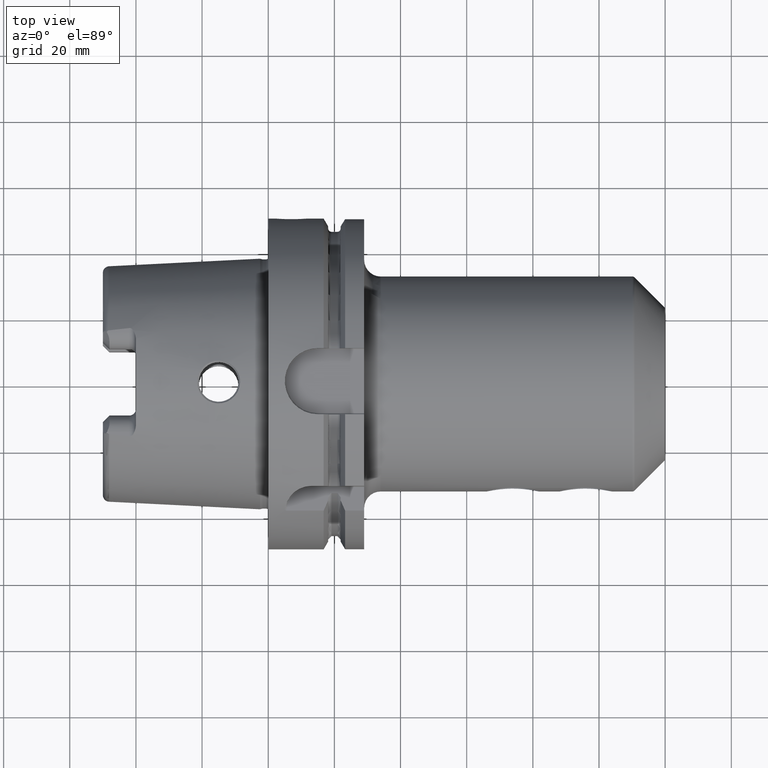
[diagram: clean part render]
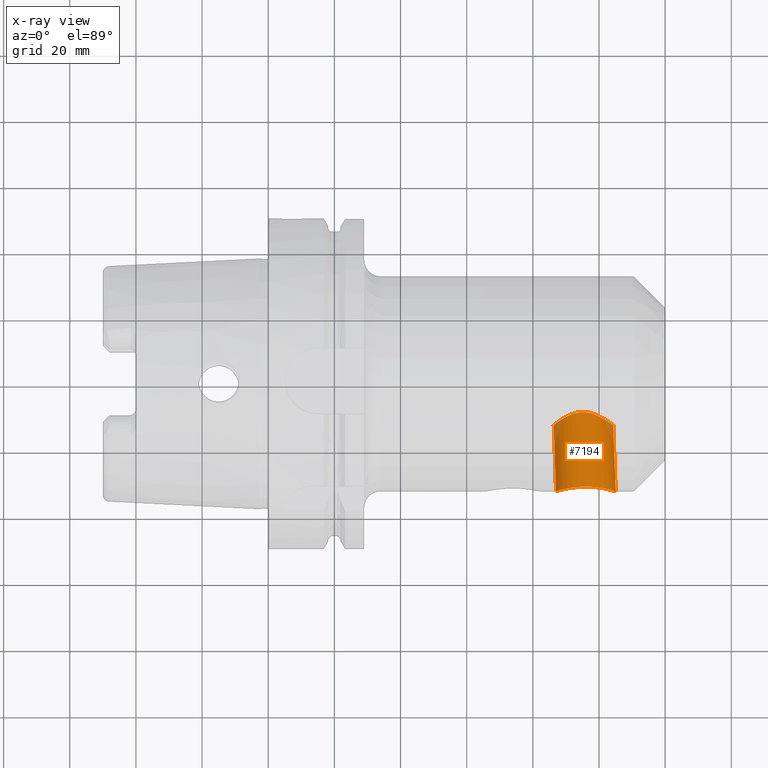
[diagram: x-ray — body ghosted, one internal face saturated and labeled with its STEP entity id]
A machine part, top view, then the same camera in x-ray: the body is ghosted and one INTERNAL B-rep face — a face not visible from any outside direction — is saturated and labeled: STEP entity #7194.
In plain terms, the highlighted cylindrical surface (edge-blend (fillet) strip) has radius 9 mm, axis along (0.0349, -0.9994, 0).
Its self-contained STEP definition (entity closure, byte-faithful):
#7017=CARTESIAN_POINT('',(1.050054858987E2,-3.25E1,0.E0));
#7048=CARTESIAN_POINT('',(8.699451410131E1,-3.25E1,0.E0));
#7050=CARTESIAN_POINT('',(8.629609871148E1,-1.25E1,0.E0));
#7083=CARTESIAN_POINT('',(1.043070705089E2,-1.25E1,0.E0));
#7085=CARTESIAN_POINT('',(8.699451410131E1,-3.25E1,0.E0));
#7086=CARTESIAN_POINT('',(8.699451410131E1,-3.25E1,3.213229832624E-1));
#7087=CARTESIAN_POINT('',(8.702862196609E1,-3.249044223715E1,
9.651940161732E-1));
#7088=CARTESIAN_POINT('',(8.718304087479E1,-3.244763761312E1,1.924325472713E0));
#7089=CARTESIAN_POINT('',(8.743945394043E1,-3.237810363315E1,2.862963684577E0));
#7090=CARTESIAN_POINT('',(8.779695827010E1,-3.228440721605E1,3.772872452183E0));
#7091=CARTESIAN_POINT('',(8.825149269177E1,-3.217075843611E1,4.640750198488E0));
#7092=CARTESIAN_POINT('',(8.880506954534E1,-3.204073360650E1,5.464208593886E0));
#7093=CARTESIAN_POINT('',(8.944712628254E1,-3.190163647135E1,6.222106073317E0));
#7094=CARTESIAN_POINT('',(9.016491850705E1,-3.176119670223E1,6.900491022713E0));
#7095=CARTESIAN_POINT('',(9.094601401850E1,-3.162652840078E1,7.491182316945E0));
#7096=CARTESIAN_POINT('',(9.178857361395E1,-3.150279679318E1,7.993518566182E0));
#7097=CARTESIAN_POINT('',(9.267089841067E1,-3.139736746239E1,8.396391756207E0));
#7098=CARTESIAN_POINT('',(9.358992775542E1,-3.131399195365E1,8.700947441162E0));
#7099=CARTESIAN_POINT('',(9.452758825427E1,-3.125683071922E1,8.903268607528E0));
#7100=CARTESIAN_POINT('',(9.548449074721E1,-3.122763614086E1,9.004723720654E0));
#7101=CARTESIAN_POINT('',(9.644265141278E1,-3.122786976593E1,9.003916778870E0));
#7102=CARTESIAN_POINT('',(9.740378529454E1,-3.125763412297E1,8.900461730014E0));
#7103=CARTESIAN_POINT('',(9.834938777543E1,-3.131562381770E1,8.695110977053E0));
#7104=CARTESIAN_POINT('',(9.927921408087E1,-3.140016017236E1,8.386020230087E0));
#7105=CARTESIAN_POINT('',(1.001739054281E2,-3.150700539455E1,7.977054074937E0));
#7106=CARTESIAN_POINT('',(1.010291151728E2,-3.163222874055E1,7.467266638853E0));
#7107=CARTESIAN_POINT('',(1.018206216929E2,-3.176796337607E1,6.869488724044E0));
#7108=CARTESIAN_POINT('',(1.025466353411E2,-3.190889637358E1,6.184966675290E0));
#7109=CARTESIAN_POINT('',(1.031939013594E2,-3.204767553445E1,5.423449949087E0));
#7110=CARTESIAN_POINT('',(1.037502095206E2,-3.217668450711E1,4.599395246536E0));
#7111=CARTESIAN_POINT('',(1.042054490691E2,-3.228882861202E1,3.734488486385E0));
#7112=CARTESIAN_POINT('',(1.045626517394E2,-3.238090103001E1,2.830314506117E0));
#7113=CARTESIAN_POINT('',(1.048180243904E2,-3.244891654876E1,1.900909279425E0));
#7114=CARTESIAN_POINT('',(1.049716260217E2,-3.249069438089E1,
9.527625136571E-1));
#7115=CARTESIAN_POINT('',(1.050054858987E2,-3.25E1,3.170761913594E-1));
#7116=CARTESIAN_POINT('',(1.050054858987E2,-3.25E1,0.E0));
#7118=DIRECTION('',(-3.489949670250E-2,9.993908270191E-1,0.E0));
#7119=VECTOR('',#7118,2.001219088598E1);
#7120=CARTESIAN_POINT('',(1.050054858987E2,-3.25E1,0.E0));
#7121=LINE('',#7120,#7119);
#7122=CARTESIAN_POINT('',(1.043070705089E2,-1.25E1,0.E0));
#7123=CARTESIAN_POINT('',(1.043070705089E2,-1.25E1,2.818191463595E-1));
#7124=CARTESIAN_POINT('',(1.042799010793E2,-1.248090825391E1,
8.483616936455E-1));
#7125=CARTESIAN_POINT('',(1.041554858658E2,-1.239385378126E1,1.698700964298E0));
#7126=CARTESIAN_POINT('',(1.039462933014E2,-1.224873523084E1,2.543014547395E0));
#7127=CARTESIAN_POINT('',(1.036447137978E2,-1.204242553607E1,3.388857288242E0));
#7128=CARTESIAN_POINT('',(1.032471996422E2,-1.177597193510E1,4.223152308527E0));
#7129=CARTESIAN_POINT('',(1.027438645108E2,-1.144821896902E1,5.044646820218E0));
#7130=CARTESIAN_POINT('',(1.021327484407E2,-1.106604316175E1,5.834856467933E0));
#7131=CARTESIAN_POINT('',(1.014131270330E2,-1.064092075190E1,6.576447009617E0));
#7132=CARTESIAN_POINT('',(1.006087544258E2,-1.020169187640E1,7.236380143390E0));
#7133=CARTESIAN_POINT('',(9.973666077817E1,-9.774930194169E0,7.799978240192E0));
#7134=CARTESIAN_POINT('',(9.885232168356E1,-9.402608884938E0,8.241730153737E0));
#7135=CARTESIAN_POINT('',(9.798683191315E1,-9.104265529675E0,8.567891705911E0));
#7136=CARTESIAN_POINT('',(9.715109164875E1,-8.884768278008E0,8.793859666509E0));
#7137=CARTESIAN_POINT('',(9.634461518163E1,-8.741947795446E0,8.935044622192E0));
#7138=CARTESIAN_POINT('',(9.555774783097E1,-8.671914309818E0,9.002674997714E0));
#7139=CARTESIAN_POINT('',(9.478741174555E1,-8.671552321478E0,9.003021843146E0));
#7140=CARTESIAN_POINT('',(9.400928039452E1,-8.740358866808E0,8.936587243039E0));
#7141=CARTESIAN_POINT('',(9.322178970218E1,-8.880173984428E0,8.798438108948E0));
#7142=CARTESIAN_POINT('',(9.241603323966E1,-9.093296080801E0,8.579367601765E0));
#7143=CARTESIAN_POINT('',(9.158754628098E1,-9.382258527943E0,8.264529132930E0));
#7144=CARTESIAN_POINT('',(9.074586388971E1,-9.742621951397E0,7.839704244678E0));
#7145=CARTESIAN_POINT('',(8.991285338072E1,-1.015951714903E1,7.294827575619E0));
#7146=CARTESIAN_POINT('',(8.913892609071E1,-1.059441320793E1,6.650617029200E0));
#7147=CARTESIAN_POINT('',(8.844075235541E1,-1.102126530428E1,5.918848070124E0));
#7148=CARTESIAN_POINT('',(8.784283968019E1,-1.141009251058E1,5.130571775670E0));
#7149=CARTESIAN_POINT('',(8.734753645078E1,-1.174672923928E1,4.304525572862E0));
#7150=CARTESIAN_POINT('',(8.695446306441E1,-1.202250298996E1,3.460089274569E0));
#7151=CARTESIAN_POINT('',(8.665525281052E1,-1.223718066636E1,2.599991079419E0));
#7152=CARTESIAN_POINT('',(8.644707222257E1,-1.238885878930E1,1.737959430693E0));
#7153=CARTESIAN_POINT('',(8.632317429625E1,-1.247999126049E1,
8.683361168218E-1));
#7154=CARTESIAN_POINT('',(8.629609871148E1,-1.25E1,2.885023140493E-1));
#7155=CARTESIAN_POINT('',(8.629609871148E1,-1.25E1,0.E0));
#7157=DIRECTION('',(-3.489949670250E-2,9.993908270191E-1,0.E0));
#7158=VECTOR('',#7157,2.001219088598E1);
#7159=CARTESIAN_POINT('',(8.699451410131E1,-3.25E1,0.E0));
#7160=LINE('',#7159,#7158);
#7161=VERTEX_POINT('',#7048);
#7162=VERTEX_POINT('',#7017);
#7163=VERTEX_POINT('',#7083);
#7164=VERTEX_POINT('',#7050);
#7181=CARTESIAN_POINT('',(9.462941896654E1,6.748305618903E0,0.E0));
#7182=DIRECTION('',(3.489949670250E-2,-9.993908270191E-1,0.E0));
#7183=DIRECTION('',(-9.993908270191E-1,-3.489949670250E-2,0.E0));
#7184=AXIS2_PLACEMENT_3D('',#7181,#7182,#7183);
#7185=CYLINDRICAL_SURFACE('',#7184,9.E0);
#7187=ORIENTED_EDGE('',*,*,#7186,.T.);
#7188=ORIENTED_EDGE('',*,*,#7176,.T.);
#7190=ORIENTED_EDGE('',*,*,#7189,.T.);
#7191=ORIENTED_EDGE('',*,*,#7172,.F.);
#7192=EDGE_LOOP('',(#7187,#7188,#7190,#7191));
#7193=FACE_OUTER_BOUND('',#7192,.F.);
#7194=ADVANCED_FACE('',(#7193),#7185,.F.);
#7117=B_SPLINE_CURVE_WITH_KNOTS('',3,(#7085,#7086,#7087,#7088,#7089,#7090,#7091,
#7092,#7093,#7094,#7095,#7096,#7097,#7098,#7099,#7100,#7101,#7102,#7103,#7104,
#7105,#7106,#7107,#7108,#7109,#7110,#7111,#7112,#7113,#7114,#7115,#7116),
.UNSPECIFIED.,.F.,.F.,(4,1,1,1,1,1,1,1,1,1,1,1,1,1,1,1,1,1,1,1,1,1,1,1,1,1,1,1,
1,4),(0.E0,3.448275862069E-2,6.896551724138E-2,1.034482758621E-1,
1.379310344828E-1,1.724137931034E-1,2.068965517241E-1,2.413793103448E-1,
2.758620689655E-1,3.103448275862E-1,3.448275862069E-1,3.793103448276E-1,
4.137931034483E-1,4.482758620690E-1,4.827586206897E-1,5.172413793103E-1,
5.517241379310E-1,5.862068965517E-1,6.206896551724E-1,6.551724137931E-1,
6.896551724138E-1,7.241379310345E-1,7.586206896552E-1,7.931034482759E-1,
8.275862068966E-1,8.620689655172E-1,8.965517241379E-1,9.310344827586E-1,
9.655172413793E-1,1.E0),.UNSPECIFIED.);
#7156=B_SPLINE_CURVE_WITH_KNOTS('',3,(#7122,#7123,#7124,#7125,#7126,#7127,#7128,
#7129,#7130,#7131,#7132,#7133,#7134,#7135,#7136,#7137,#7138,#7139,#7140,#7141,
#7142,#7143,#7144,#7145,#7146,#7147,#7148,#7149,#7150,#7151,#7152,#7153,#7154,
#7155),.UNSPECIFIED.,.F.,.F.,(4,1,1,1,1,1,1,1,1,1,1,1,1,1,1,1,1,1,1,1,1,1,1,1,1,
1,1,1,1,1,1,4),(0.E0,3.225806451613E-2,6.451612903226E-2,9.677419354839E-2,
1.290322580645E-1,1.612903225806E-1,1.935483870968E-1,2.258064516129E-1,
2.580645161290E-1,2.903225806452E-1,3.225806451613E-1,3.548387096774E-1,
3.870967741935E-1,4.193548387097E-1,4.516129032258E-1,4.838709677419E-1,
5.161290322581E-1,5.483870967742E-1,5.806451612903E-1,6.129032258065E-1,
6.451612903226E-1,6.774193548387E-1,7.096774193548E-1,7.419354838710E-1,
7.741935483871E-1,8.064516129032E-1,8.387096774194E-1,8.709677419355E-1,
9.032258064516E-1,9.354838709677E-1,9.677419354839E-1,1.E0),.UNSPECIFIED.);
#7172=EDGE_CURVE('',#7161,#7164,#7160,.T.);
#7176=EDGE_CURVE('',#7162,#7163,#7121,.T.);
#7186=EDGE_CURVE('',#7161,#7162,#7117,.T.);
#7189=EDGE_CURVE('',#7163,#7164,#7156,.T.);